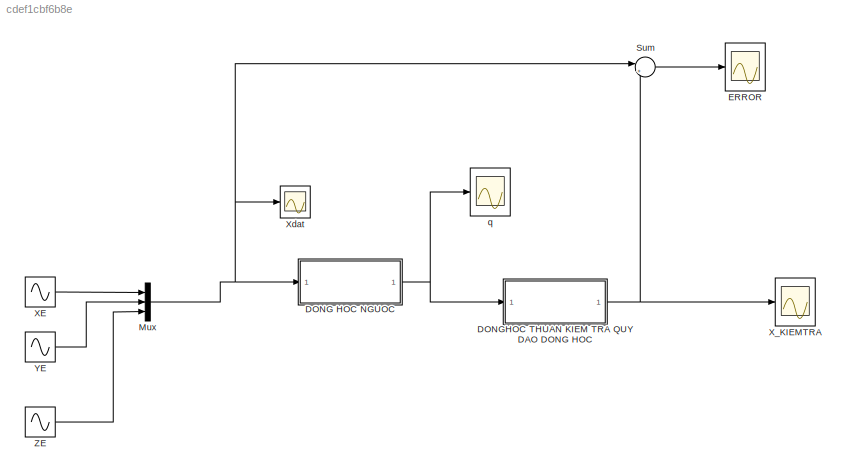
MODEL slx_cdef1cbf6b8e
KIND model
CONFIG AbsTol = auto
CONFIG EnableMultiTasking = off
CONFIG FixedStep = auto
CONFIG MaxStep = auto
CONFIG MinStep = auto
CONFIG RelTol = 1e-3
CONFIG SampleTimeConstraint = Unconstrained
CONFIG SolverName = VariableStepAuto
CONFIG StartTime = 0.0
CONFIG StopTime = 10.0
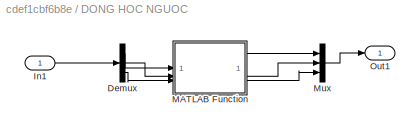
BLOCK [SubSystem] DONG HOC NGUOC
BLOCK [Demux] DONG HOC NGUOC/Demux
  Outputs = 3
BLOCK [Inport] DONG HOC NGUOC/In1
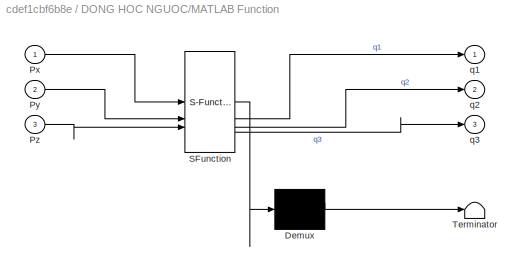
BLOCK [SubSystem] DONG HOC NGUOC/MATLAB Function
  ErrorFcn = Stateflow.Translate.translate
  LibrarySourceBlock = simulink/User-Defined\nFunctions/MATLAB Function
  PermitHierarchicalResolution = ExplicitOnly
  SFBlockType = MATLAB Function
  TreatAsAtomicUnit = on
BLOCK [Demux] DONG HOC NGUOC/MATLAB Function/ Demux 
  Outputs = 1
BLOCK [S-Function] DONG HOC NGUOC/MATLAB Function/ SFunction 
  EnableBusSupport = on
  FunctionName = sf_sfun
  PortCounts = [3 4]
  SFcnIsStateOwnerBlock = off
  SFunctionDeploymentMode = off
  Tag = Stateflow S-Function 2
BLOCK [Terminator] DONG HOC NGUOC/MATLAB Function/ Terminator 
BLOCK [Inport] DONG HOC NGUOC/MATLAB Function/Px
BLOCK [Inport] DONG HOC NGUOC/MATLAB Function/Py
  Port = 2
BLOCK [Inport] DONG HOC NGUOC/MATLAB Function/Pz
  Port = 3
BLOCK [Outport] DONG HOC NGUOC/MATLAB Function/q1
BLOCK [Outport] DONG HOC NGUOC/MATLAB Function/q2
  Port = 2
BLOCK [Outport] DONG HOC NGUOC/MATLAB Function/q3
  Port = 3
BLOCK [Mux] DONG HOC NGUOC/Mux
  DisplayOption = bar
  Inputs = 3
BLOCK [Outport] DONG HOC NGUOC/Out1
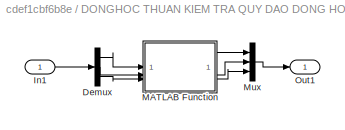
BLOCK [SubSystem] DONGHOC THUAN KIEM TRA QUY DAO DONG HOC
BLOCK [Demux] DONGHOC THUAN KIEM TRA QUY DAO DONG HOC/Demux
  Outputs = 3
BLOCK [Inport] DONGHOC THUAN KIEM TRA QUY DAO DONG HOC/In1
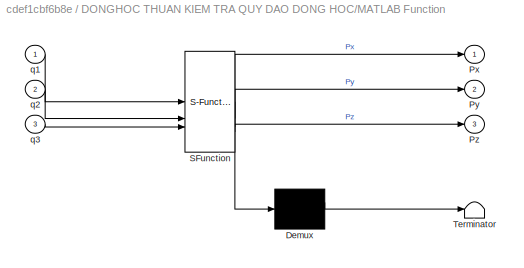
BLOCK [SubSystem] DONGHOC THUAN KIEM TRA QUY DAO DONG HOC/MATLAB Function
  ErrorFcn = Stateflow.Translate.translate
  LibrarySourceBlock = simulink/User-Defined\nFunctions/MATLAB Function
  PermitHierarchicalResolution = ExplicitOnly
  SFBlockType = MATLAB Function
  TreatAsAtomicUnit = on
BLOCK [Demux] DONGHOC THUAN KIEM TRA QUY DAO DONG HOC/MATLAB Function/ Demux 
  Outputs = 1
BLOCK [S-Function] DONGHOC THUAN KIEM TRA QUY DAO DONG HOC/MATLAB Function/ SFunction 
  EnableBusSupport = on
  FunctionName = sf_sfun
  PortCounts = [3 4]
  SFcnIsStateOwnerBlock = off
  SFunctionDeploymentMode = off
  Tag = Stateflow S-Function 1
BLOCK [Terminator] DONGHOC THUAN KIEM TRA QUY DAO DONG HOC/MATLAB Function/ Terminator 
BLOCK [Outport] DONGHOC THUAN KIEM TRA QUY DAO DONG HOC/MATLAB Function/Px
BLOCK [Outport] DONGHOC THUAN KIEM TRA QUY DAO DONG HOC/MATLAB Function/Py
  Port = 2
BLOCK [Outport] DONGHOC THUAN KIEM TRA QUY DAO DONG HOC/MATLAB Function/Pz
  Port = 3
BLOCK [Inport] DONGHOC THUAN KIEM TRA QUY DAO DONG HOC/MATLAB Function/q1
BLOCK [Inport] DONGHOC THUAN KIEM TRA QUY DAO DONG HOC/MATLAB Function/q2
  Port = 2
BLOCK [Inport] DONGHOC THUAN KIEM TRA QUY DAO DONG HOC/MATLAB Function/q3
  Port = 3
BLOCK [Mux] DONGHOC THUAN KIEM TRA QUY DAO DONG HOC/Mux
  DisplayOption = bar
  Inputs = 3
BLOCK [Outport] DONGHOC THUAN KIEM TRA QUY DAO DONG HOC/Out1
BLOCK [Scope] ERROR
  Floating = off
  NameLocation = right
  NumInputPorts = 1
  ScopeSpecificationString = Simulink.scopes.TimeScopeBlockCfg('CurrentConfiguration', extmgr.ConfigurationSet(extmgr.Configuration('Core','General UI',true),extmgr.Configuration('Core','Source UI',true),extmgr.Configuration('Sources','WiredSimulink',true,'DataLoggingVariableName','ScopeData3'),extmgr.Configuration('Visuals','Time Domain',true,'SerializedDisplays',{struct('MinYLimReal','-0.00000000000001','MaxYLimReal','0.000...<+1522ch>
BLOCK [Mux] Mux
  DisplayOption = bar
  Inputs = 3
BLOCK [Sum] Sum
  Inputs = |+-
BLOCK [Sin] XE
  Bias = 2
  NameLocation = top
  Phase = pi
  SampleTime = 0
BLOCK [Scope] X_KIEMTRA
  Floating = off
  NameLocation = right
  NumInputPorts = 1
  ScopeSpecificationString = Simulink.scopes.TimeScopeBlockCfg('CurrentConfiguration', extmgr.ConfigurationSet(extmgr.Configuration('Core','General UI',true),extmgr.Configuration('Core','Source UI',true),extmgr.Configuration('Sources','WiredSimulink',true,'DataLoggingVariableName','ScopeData1'),extmgr.Configuration('Visuals','Time Domain',true,'SerializedDisplays',{struct('MinYLimReal','-0.43742','MaxYLimReal','3.93678','YLab...<+1656ch>
BLOCK [Scope] Xdat
  Floating = off
  NumInputPorts = 1
  ScopeSpecificationString = Simulink.scopes.TimeScopeBlockCfg('CurrentConfiguration', extmgr.ConfigurationSet(extmgr.Configuration('Core','General UI',true),extmgr.Configuration('Core','Source UI',true),extmgr.Configuration('Sources','WiredSimulink',true),extmgr.Configuration('Visuals','Time Domain',true,'SerializedDisplays',{struct('MinYLimReal','0.13155','MaxYLimReal','3.87356','YLabelReal','','MinYLimMag','0.13155','MaxYL...<+1359ch>
BLOCK [Sin] YE
  Amplitude = 1.2
  Bias = 2
  NameLocation = top
  Phase = pi/2
  SampleTime = 0
BLOCK [Sin] ZE
  Amplitude = 1.5
  Bias = 2
  NameLocation = top
  SampleTime = 0
BLOCK [Scope] q
  Floating = off
  NameLocation = right
  NumInputPorts = 1
  ScopeSpecificationString = Simulink.scopes.TimeScopeBlockCfg('CurrentConfiguration', extmgr.ConfigurationSet(extmgr.Configuration('Core','General UI',true),extmgr.Configuration('Core','Source UI',true),extmgr.Configuration('Sources','WiredSimulink',true,'DataLoggingVariableName','ScopeData2'),extmgr.Configuration('Visuals','Time Domain',true,'SerializedDisplays',{struct('MinYLimReal','-1.95168','MaxYLimReal','3.37109','YLab...<+1506ch>
LINE DONG HOC NGUOC/Demux:1 -> DONG HOC NGUOC/MATLAB Function:1
LINE DONG HOC NGUOC/Demux:2 -> DONG HOC NGUOC/MATLAB Function:2
LINE DONG HOC NGUOC/Demux:3 -> DONG HOC NGUOC/MATLAB Function:3
LINE DONG HOC NGUOC/In1:1 -> DONG HOC NGUOC/Demux:1
LINE DONG HOC NGUOC/MATLAB Function:1 -> DONG HOC NGUOC/Mux:1
LINE DONG HOC NGUOC/MATLAB Function:2 -> DONG HOC NGUOC/Mux:2
LINE DONG HOC NGUOC/MATLAB Function:3 -> DONG HOC NGUOC/Mux:3
LINE DONG HOC NGUOC/Mux:1 -> DONG HOC NGUOC/Out1:1
NET DONG HOC NGUOC:1 -> DONGHOC THUAN KIEM TRA QUY DAO DONG HOC:1, q:1
LINE DONGHOC THUAN KIEM TRA QUY DAO DONG HOC/Demux:1 -> DONGHOC THUAN KIEM TRA QUY DAO DONG HOC/MATLAB Function:1
LINE DONGHOC THUAN KIEM TRA QUY DAO DONG HOC/Demux:2 -> DONGHOC THUAN KIEM TRA QUY DAO DONG HOC/MATLAB Function:2
LINE DONGHOC THUAN KIEM TRA QUY DAO DONG HOC/Demux:3 -> DONGHOC THUAN KIEM TRA QUY DAO DONG HOC/MATLAB Function:3
LINE DONGHOC THUAN KIEM TRA QUY DAO DONG HOC/In1:1 -> DONGHOC THUAN KIEM TRA QUY DAO DONG HOC/Demux:1
LINE DONGHOC THUAN KIEM TRA QUY DAO DONG HOC/MATLAB Function:1 -> DONGHOC THUAN KIEM TRA QUY DAO DONG HOC/Mux:1
LINE DONGHOC THUAN KIEM TRA QUY DAO DONG HOC/MATLAB Function:2 -> DONGHOC THUAN KIEM TRA QUY DAO DONG HOC/Mux:2
LINE DONGHOC THUAN KIEM TRA QUY DAO DONG HOC/MATLAB Function:3 -> DONGHOC THUAN KIEM TRA QUY DAO DONG HOC/Mux:3
LINE DONGHOC THUAN KIEM TRA QUY DAO DONG HOC/Mux:1 -> DONGHOC THUAN KIEM TRA QUY DAO DONG HOC/Out1:1
NET DONGHOC THUAN KIEM TRA QUY DAO DONG HOC:1 -> Sum:2, X_KIEMTRA:1
NET Mux:1 -> DONG HOC NGUOC:1, Sum:1, Xdat:1
LINE Sum:1 -> ERROR:1
LINE XE:1 -> Mux:1
LINE YE:1 -> Mux:2
LINE ZE:1 -> Mux:3
note: NET lines group one-source signal fan-out (src -> all destinations, sorted); 1:1 wires keep LINE
CHART DONGHOC THUAN KIEM TRA QUY DAO DONG HOC/MATLAB Function states=1 transitions=1
  STATE_LABEL 'eML_blk_kernel()'
  STATE_LABEL 'SCRIPT:\nfunction [Px, Py, Pz] = fcn(q1, q2, q3)\n    a2=1;\n    a3=1;\n\n    Px=cos(q1)*(a2*cos(q2)+a3*cos(q2 + q3));\n\n    Py=sin(q1)*(a2*cos(q2)+a3*cos(q2 + q3));\n    \n    Pz=a2*sin(q2)+a3*sin(q2 + q3);\nend'
CHART DONG HOC NGUOC/MATLAB Function states=1 transitions=1
  STATE_LABEL 'eML_blk_kernel()'
  STATE_LABEL 'SCRIPT:\nfunction [q1, q2, q3] = fcn(Px, Py, Pz)\n    a2 = 1;\n    a3 = 1;\n\n    c3 = (Px^2 + Py^2 + Pz^2 - a2^2 - a3^2)/(2*a2*a3);\n    q3 = acos(complex(c3));\n\n    c2 = (sqrt(Px^2+Py^2)*(a2+a3*cos(q3))+Pz*a3*sin(q3))/(a2^2+a3^2+2*a2*a3*cos(q3));\n    q2 = acos(complex(c2));\n\n\n    c1 = Px/(sqrt(Px^2+Py^2));\n    q1 = acos(complex(c1));\nend'
CHART  states=0 transitions=0
CHART  states=0 transitions=0
